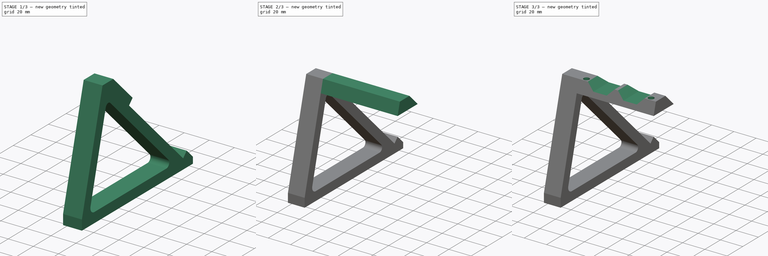
[diagram: build sequence overview — one tinted view per stage of 3, left to right]
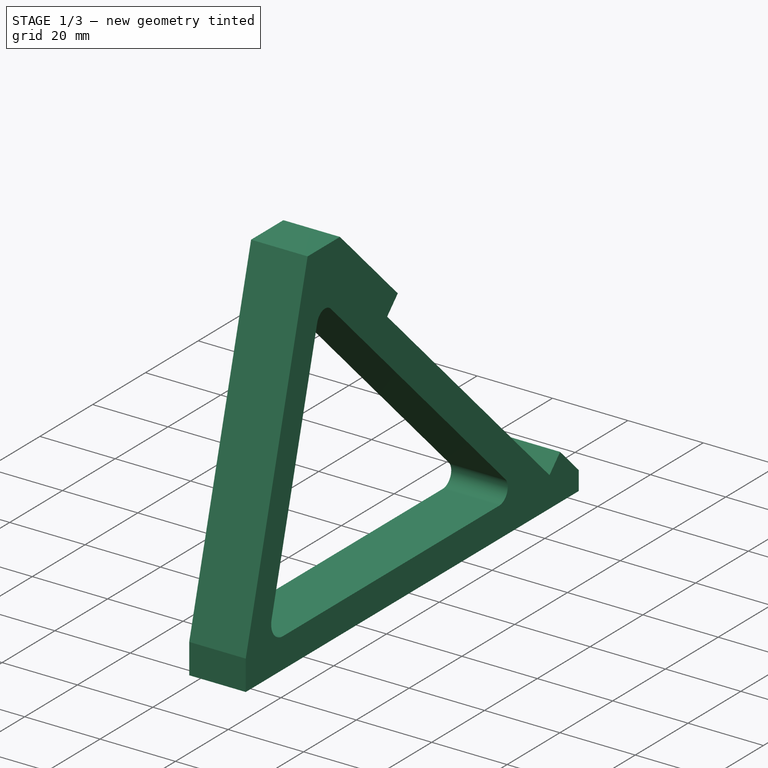
[diagram: stage 1 of 3 — iso view after this stage's code; geometry added in this stage tinted green]
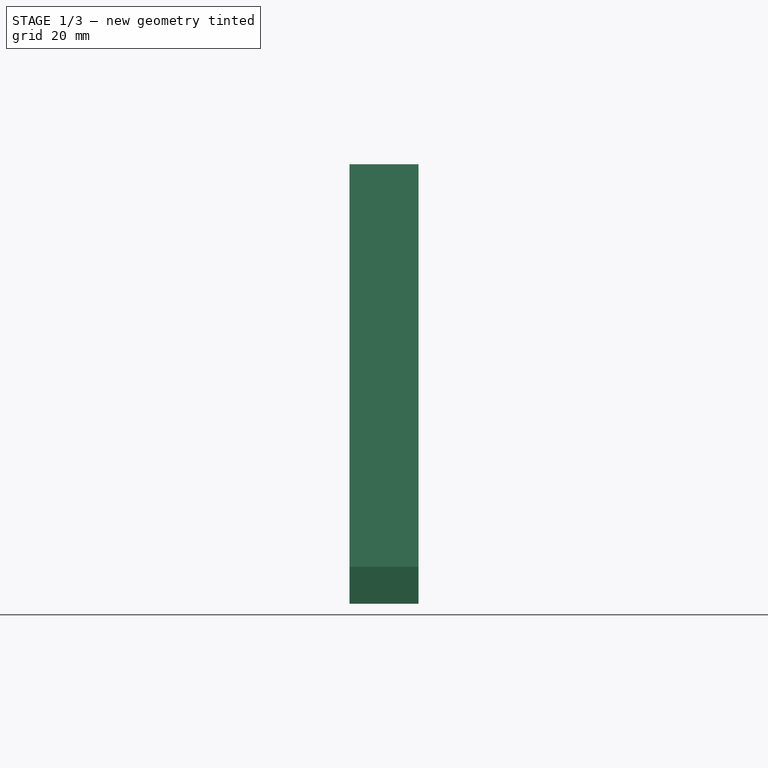
[diagram: stage 1 of 3 — front view after this stage's code; geometry added in this stage tinted green]
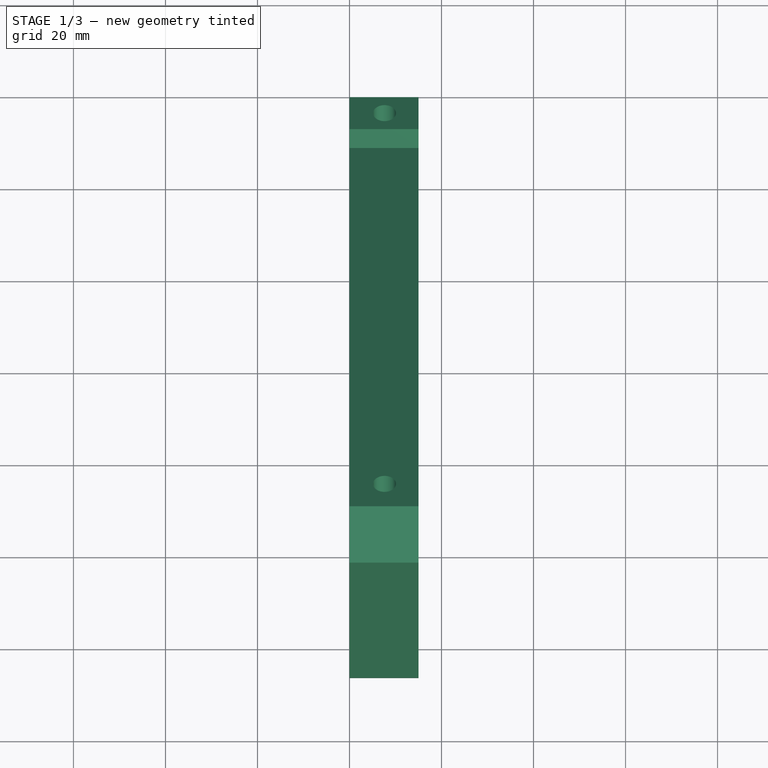
[diagram: stage 1 of 3 — top view after this stage's code; geometry added in this stage tinted green]
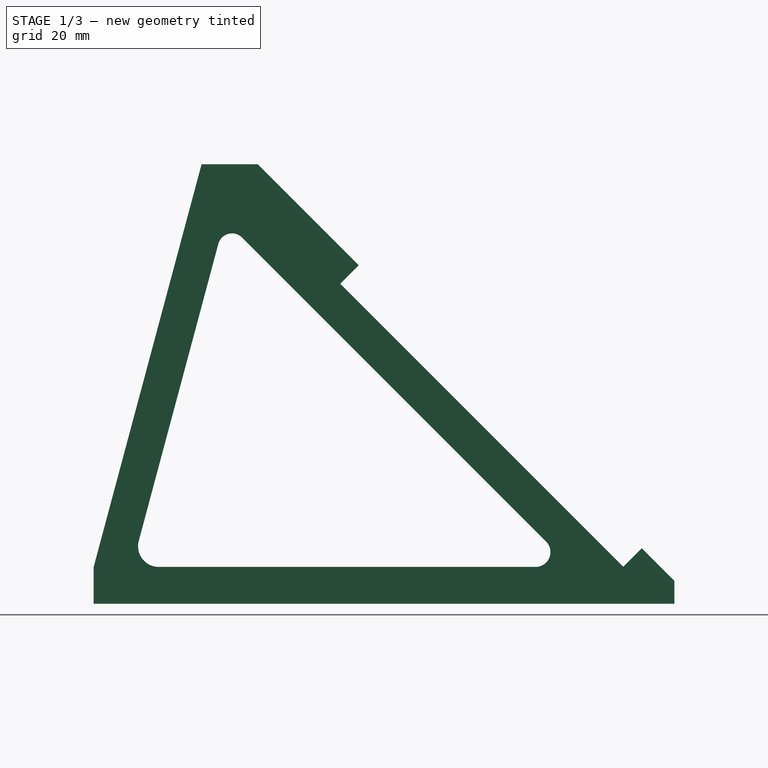
[diagram: stage 1 of 3 — right view after this stage's code; geometry added in this stage tinted green]
FCSTD DOCUMENT  (FreeCAD 0.18R4 (GitTag))
Label: stand_right_v3
License: All rights reserved
LicenseURL: http://en.wikipedia.org/wiki/All_rights_reserved
objects: Sketcher::SketchObject×5, PartDesign::Pocket×4, PartDesign::Pad×2, PartDesign::Body×1
note: 18 computed .brp shape members not serialized (recipe doc carries the construction recipe); baked Part::Feature solids carry a one-line shape summary decoded from their .brp

FEATURE [Sketcher::SketchObject] Sketch
  MapMode = 5
  Placement = pos=(0,0,0) rot=(0.57735,0.57735,0.57735;2.0944rad)
  Support = -> [YZ_Plane]
  sketch-geometry (18):
    g0: LineSegment StartX=-126.204 StartY=0 StartZ=0 EndX=0 EndY=0 EndZ=0
    g1: LineSegment StartX=0 StartY=0 StartZ=0 EndX=0 EndY=5 EndZ=0
    g2: LineSegment StartX=0 StartY=5 StartZ=0 EndX=-7.07107 EndY=12.0711 EndZ=0
    g3: LineSegment StartX=-7.07107 StartY=12.0711 StartZ=0 EndX=-11.1016 EndY=8.04056 EndZ=0
    g4: LineSegment StartX=-11.1016 StartY=8.04056 StartZ=0 EndX=-72.6199 EndY=69.5588 EndZ=0
    g5: LineSegment StartX=-72.6199 StartY=69.5588 StartZ=0 EndX=-68.5894 EndY=73.5894 EndZ=0
    g6: LineSegment StartX=-68.5894 StartY=73.5894 StartZ=0 EndX=-90.5097 EndY=95.5097 EndZ=0
    g7: LineSegment StartX=-93.962 StartY=79.5872 StartZ=0 EndX=-27.8685 EndY=13.4938 EndZ=0
    g8: LineSegment StartX=-30.1441 StartY=8 StartZ=0 EndX=-112.06 EndY=8 EndZ=0
    g9: LineSegment StartX=-126.204 StartY=8 StartZ=0 EndX=-126.204 EndY=0 EndZ=0
    g10: LineSegment StartX=-116.405 StartY=13.6623 StartZ=0 EndX=-99.1101 EndY=78.2078 EndZ=0
    g11: GeomPoint X=-65.4328 Y=51.0581 Z=0
    g12: GeomPoint X=-109.601 Y=39.0554 Z=0
    g13: ArcOfCircle CenterX=-30.1441 CenterY=11.2182 CenterZ=0 NormalX=0 NormalY=0 NormalZ=1 AngleXU=0 Radius=3.21819 StartAngle=4.71239 EndAngle=7.06858
    g14: ArcOfCircle CenterX=-112.06 CenterY=12.4981 CenterZ=0 NormalX=0 NormalY=0 NormalZ=1 AngleXU=0 Radius=4.49811 StartAngle=2.87979 EndAngle=4.71239
    g15: ArcOfCircle CenterX=-96.1378 CenterY=77.4114 CenterZ=0 NormalX=0 NormalY=0 NormalZ=1 AngleXU=0 Radius=3.07713 StartAngle=0.785398 EndAngle=2.87979
    g16: LineSegment StartX=-126.204 StartY=8 StartZ=0 EndX=-102.756 EndY=95.5097 EndZ=0
    g17: LineSegment StartX=-102.756 StartY=95.5097 StartZ=0 EndX=-90.5097 EndY=95.5097 EndZ=0
  constraints (42):
    c: Coincident(g0,g-1)
    c: Horizontal(g0)
    c: Coincident(g0,g1)
    c: Coincident(g1,g2)
    c: Coincident(g2,g3)
    c: Coincident(g3,g4)
    c: Coincident(g4,g5)
    c: Coincident(g5,g6)
    c: Horizontal(g8)
    c: Coincident(g9,g0)
    c: Vertical(g1)
    c: Vertical(g9)
    c: Angle(g7,g8) = 0.785398
    c: Parallel(g7,g4)
    c: Parallel(g7,g6)
    c: Parallel(g7,g2)
    c: Perpendicular(g3,g2)
    c: Perpendicular(g5,g6)
    c: Distance(g1) = 5
    c: Distance(g2) = 10
    c: Distance(g4) = 87
    c: Distance(g5) = 5.7
    c: Distance(g3) = 5.7
    c: Angle(g8,g10) = 1.309
    c: Distance(g9) = 8
    c: PointOnObject(g11,g7)
    c: PointOnObject(g12,g10)
    c: Tangent(g8,g13) = 1.5708
    c: Tangent(g7,g13) = 1.5708
    c: Tangent(g8,g14) = 1.5708
    c: Tangent(g10,g14) = 1.5708
    c: Tangent(g7,g15) = 1.5708
    c: Tangent(g10,g15) = 1.5708
    c: Parallel(g10,g16)
    c: Coincident(g16,g9)
    c: Coincident(g17,g16)
    c: Coincident(g17,g6)
    c: Horizontal(g17)
    c: Distance(g8,g0) = 8
    c: Distance(g7,g4) = 8
    c: Distance(g10,g16) = 8
    c: DistanceX(g6) = -90.5097
FEATURE [PartDesign::Pad] Pad
  Length = 15
  Length2 = 100
  Placement = pos=(0,0,0) rot=(0.57735,0.57735,0.57735;2.0944rad)
  Profile = -> Sketch
  Type = 0
FEATURE [Sketcher::SketchObject] Sketch001
  ExternalGeometry = -> [Pad]
  MapMode = 5
  Placement = pos=(1e-16,2.5,2.5) rot=(-0.357407,-0.357407,-0.862856;1.71777rad)
  Support = -> [Pad]
  sketch-geometry (2):
    g0: Circle CenterX=8.53553 CenterY=7.61996 CenterZ=0 NormalX=0 NormalY=0 NormalZ=1 AngleXU=0 Radius=2.5
    g1: Circle CenterX=124.536 CenterY=7.61925 CenterZ=0 NormalX=0 NormalY=0 NormalZ=1 AngleXU=0 Radius=2.5
  constraints (4):
    c: Radius(g0) = 2.5
    c: Radius(g1) = 2.5
    c: Distance(g1,g0) = 116
    c: Distance(g0,g-5) = 5
FEATURE [PartDesign::Pocket] Pocket
  BaseFeature = -> Pad
  Length = 6
  Length2 = 100
  Placement = pos=(0,0,0) rot=(0.57735,0.57735,0.57735;2.0944rad)
  Profile = -> Sketch001
  Type = 0
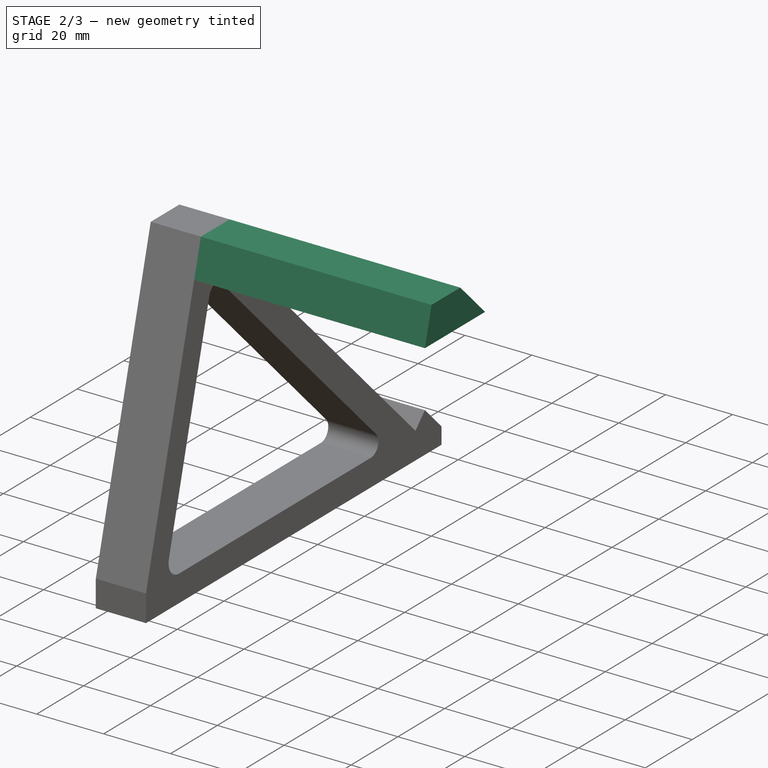
[diagram: stage 2 of 3 — iso view after this stage's code; geometry added in this stage tinted green]
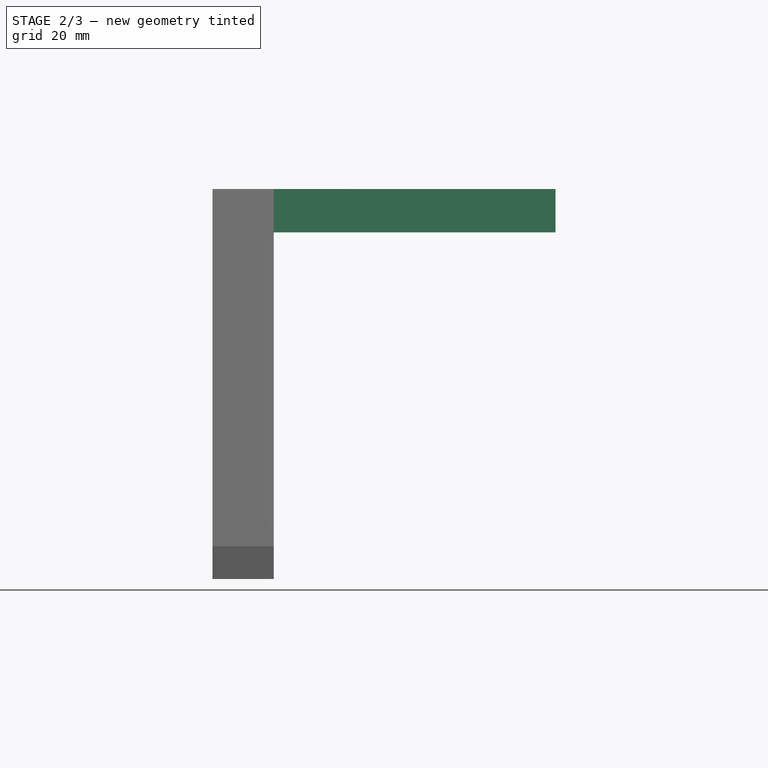
[diagram: stage 2 of 3 — front view after this stage's code; geometry added in this stage tinted green]
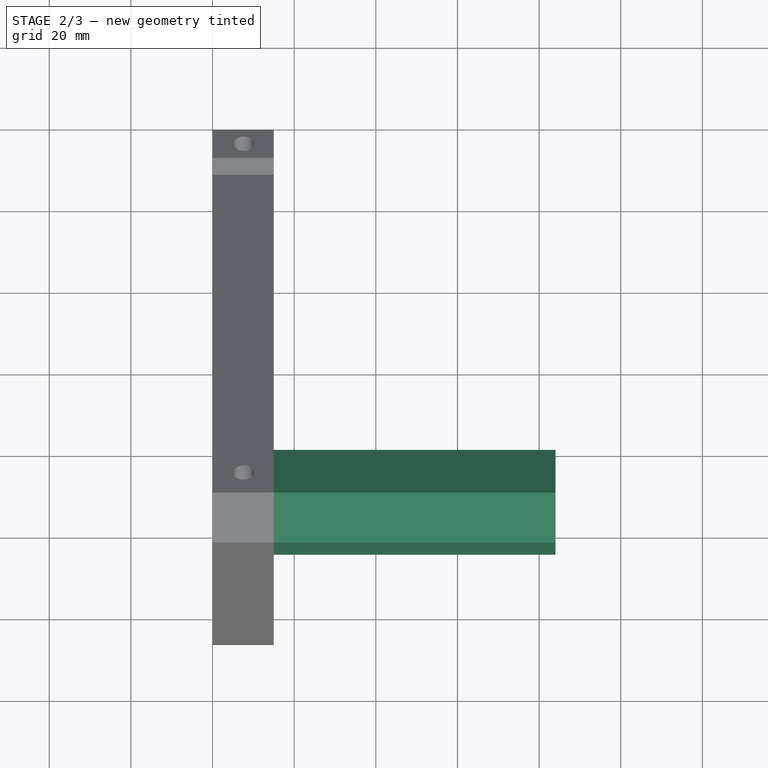
[diagram: stage 2 of 3 — top view after this stage's code; geometry added in this stage tinted green]
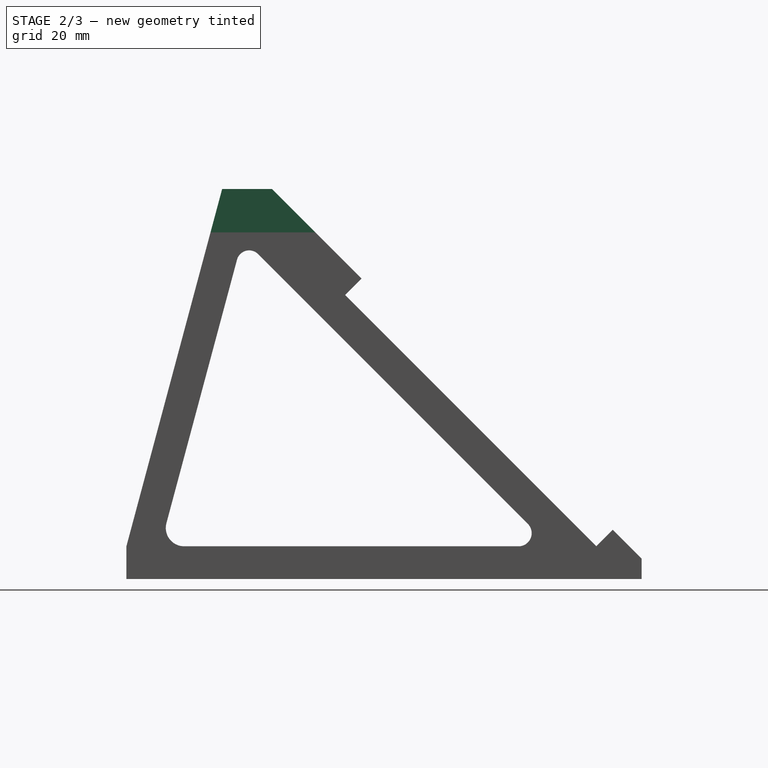
[diagram: stage 2 of 3 — right view after this stage's code; geometry added in this stage tinted green]
FEATURE [Sketcher::SketchObject] Sketch002
  ExternalGeometry = -> [Pocket]
  MapMode = 5
  Placement = pos=(15,-1e-14,6.7e-15) rot=(0.57735,0.57735,0.57735;2.0944rad)
  Support = -> [Pocket]
  sketch-geometry (4):
    g0: LineSegment StartX=-105.598 StartY=84.9031 StartZ=0 EndX=-79.9031 EndY=84.9031 EndZ=0
    g1: LineSegment StartX=-102.756 StartY=95.5097 StartZ=0 EndX=-105.598 EndY=84.9031 EndZ=0
    g2: LineSegment StartX=-102.756 StartY=95.5097 StartZ=0 EndX=-90.5097 EndY=95.5097 EndZ=0
    g3: LineSegment StartX=-79.9031 StartY=84.9031 StartZ=0 EndX=-90.5097 EndY=95.5097 EndZ=0
  constraints (10):
    c: PointOnObject(g0,g-4)
    c: PointOnObject(g0,g-3)
    c: Horizontal(g0)
    c: Coincident(g1,g-4)
    c: Coincident(g1,g0)
    c: Coincident(g2,g1)
    c: Coincident(g2,g-5)
    c: Coincident(g3,g0)
    c: Coincident(g3,g2)
    c: Distance(g3) = 15
FEATURE [PartDesign::Pad] Pad001
  BaseFeature = -> Pocket
  Length = 69
  Length2 = 100
  Placement = pos=(0,0,0) rot=(0.57735,0.57735,0.57735;2.0944rad)
  Profile = -> Sketch002
  Type = 0
FEATURE [Sketcher::SketchObject] Sketch003
  ExternalGeometry = -> [Pad001]
  MapMode = 5
  Placement = pos=(0,0,0) rot=(1,0,0;1.5708rad)
  Support = -> [XZ_Plane]
  sketch-geometry (8):
    g0: LineSegment StartX=23 StartY=95.5097 StartZ=0 EndX=29 EndY=89.5097 EndZ=0
    g1: LineSegment StartX=29 StartY=89.5097 StartZ=0 EndX=41 EndY=89.5097 EndZ=0
    g2: LineSegment StartX=41 StartY=89.5097 StartZ=0 EndX=47 EndY=95.5097 EndZ=0
    g3: LineSegment StartX=23 StartY=95.5097 StartZ=0 EndX=47 EndY=95.5097 EndZ=0
    g4: LineSegment StartX=50 StartY=95.5097 StartZ=0 EndX=74 EndY=95.5097 EndZ=0
    g5: LineSegment StartX=50 StartY=95.5097 StartZ=0 EndX=56 EndY=89.5097 EndZ=0
    g6: LineSegment StartX=56 StartY=89.5097 StartZ=0 EndX=68 EndY=89.5097 EndZ=0
    g7: LineSegment StartX=68 StartY=89.5097 StartZ=0 EndX=74 EndY=95.5097 EndZ=0
  constraints (24):
    c: PointOnObject(g0,g-3)
    c: Coincident(g1,g0)
    c: Horizontal(g1)
    c: Coincident(g2,g1)
    c: PointOnObject(g2,g-3)
    c: Distance(g0,g-3) = 8
    c: Distance(g1) = 12
    c: Angle(g1,g0) = 2.35619
    c: Angle(g2,g1) = 2.35619
    c: DistanceY(g1,g2) = 6
    c: Coincident(g3,g0)
    c: Coincident(g3,g2)
    c: PointOnObject(g4,g-3)
    c: PointOnObject(g4,g-3)
    c: Coincident(g5,g4)
    c: Coincident(g6,g5)
    c: Horizontal(g6)
    c: Coincident(g7,g6)
    c: Coincident(g7,g4)
    c: Distance(g6) = 12
    c: DistanceY(g6,g4) = 6
    c: Angle(g6,g5) = 2.35619
    c: Angle(g7,g6) = 2.35619
    c: Distance(g5,g1) = 15
FEATURE [PartDesign::Pocket] Pocket001
  BaseFeature = -> Pad001
  Length = 5
  Length2 = 100
  Placement = pos=(0,0,0) rot=(0.57735,0.57735,0.57735;2.0944rad)
  Profile = -> Sketch003
  Type = 1
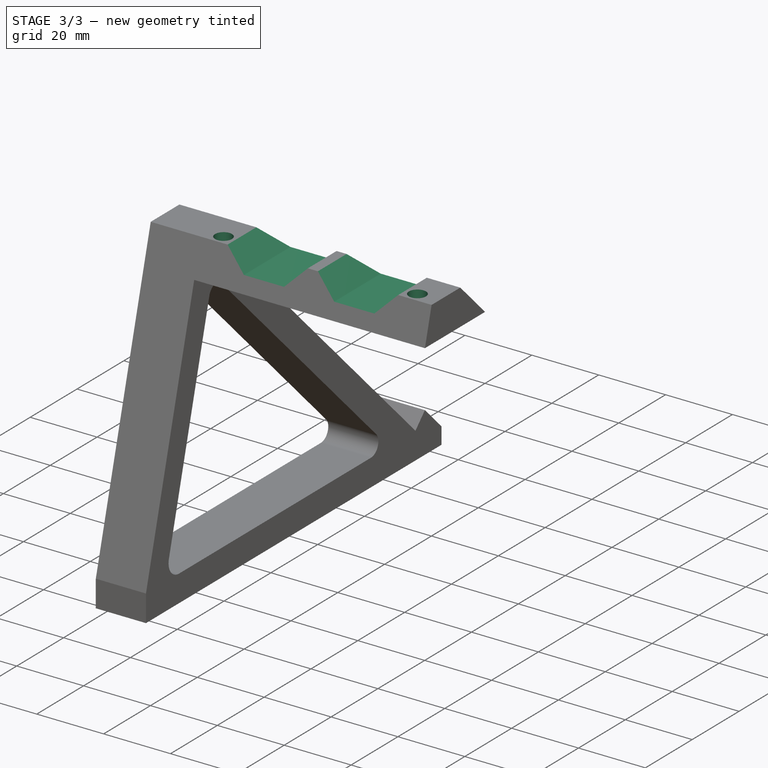
[diagram: stage 3 of 3 — iso view after this stage's code; geometry added in this stage tinted green]
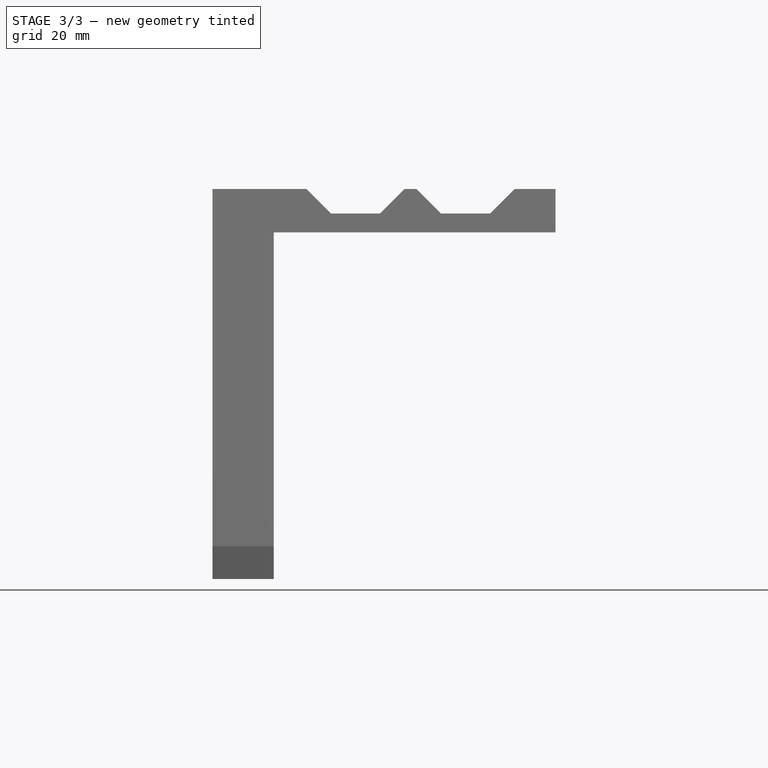
[diagram: stage 3 of 3 — front view after this stage's code; geometry added in this stage tinted green]
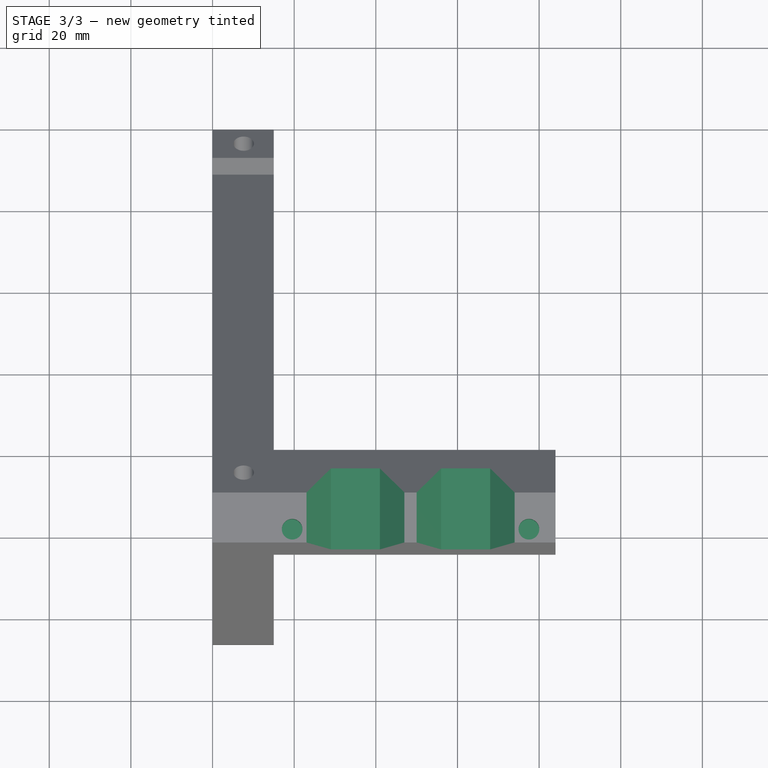
[diagram: stage 3 of 3 — top view after this stage's code; geometry added in this stage tinted green]
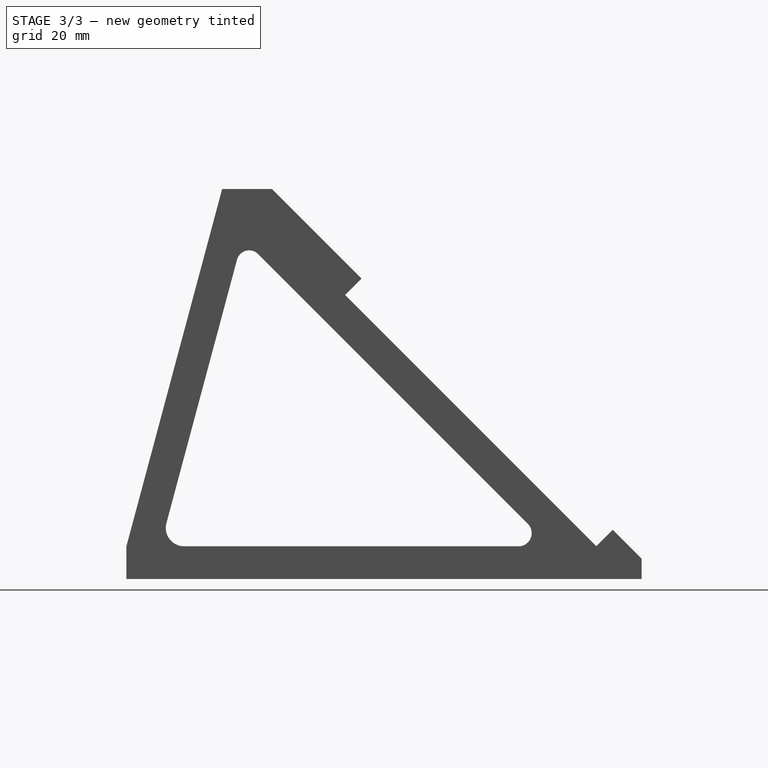
[diagram: stage 3 of 3 — right view after this stage's code; geometry added in this stage tinted green]
FEATURE [PartDesign::Pocket] Pocket002
  BaseFeature = -> Pocket001
  Length = 0
  Length2 = 100
  Placement = pos=(0,0,0) rot=(0.57735,0.57735,0.57735;2.0944rad)
  Profile = -> Sketch003
  Reversed = true
  Type = 1
FEATURE [Sketcher::SketchObject] Sketch004
  ExternalGeometry = -> [Pocket002]
  MapMode = 5
  Placement = pos=(-9.54e-14,5.3e-14,95.5097) rot=(0,0,-1;1.5708rad)
  Support = -> [Pocket002]
  sketch-geometry (2):
    g0: Circle CenterX=99.5097 CenterY=19.5 CenterZ=0 NormalX=0 NormalY=0 NormalZ=1 AngleXU=0 Radius=2.52796
    g1: Circle CenterX=99.5097 CenterY=77.5 CenterZ=0 NormalX=0 NormalY=0 NormalZ=1 AngleXU=0 Radius=2.53857
  constraints (4):
    c: Distance(g0,g-3) = 4.5
    c: Distance(g1,g0) = 58
    c: Distance(g0,g-5) = 9
    c: Vertical(g0,g1)
FEATURE [PartDesign::Pocket] Pocket003
  BaseFeature = -> Pocket002
  Length = 6
  Length2 = 100
  Placement = pos=(0,0,0) rot=(0.57735,0.57735,0.57735;2.0944rad)
  Profile = -> Sketch004
  Type = 0
FEATURE [PartDesign::Body] Body
  Group = -> [Sketch,Pad,Sketch001,Pocket,Sketch002,Pad001,Sketch003,Pocket001,Pocket002,Sketch004,Pocket003]
  Origin = -> Origin
  Tip = -> Pocket003
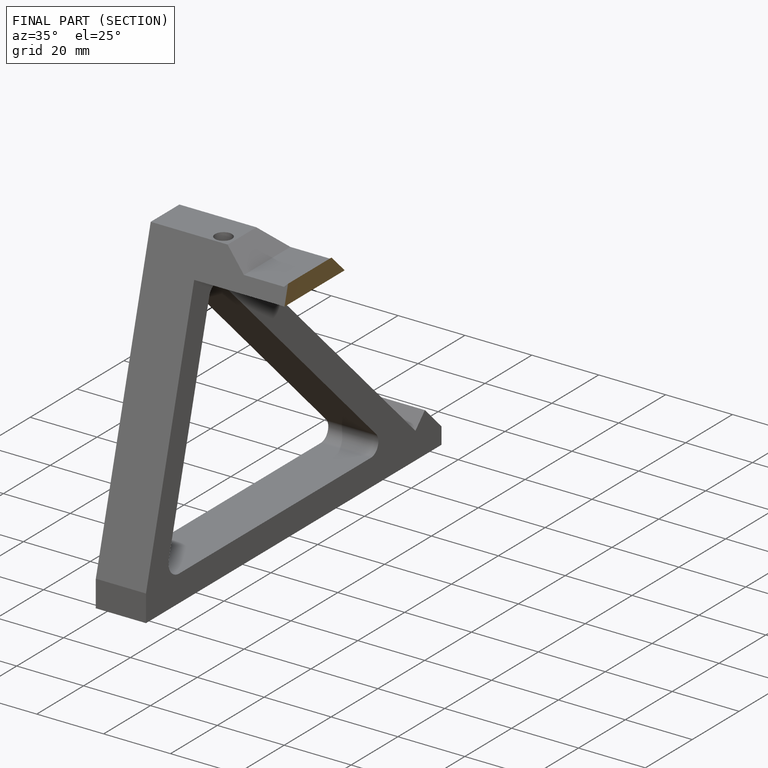
[diagram: finished part — half-section view (interior)]
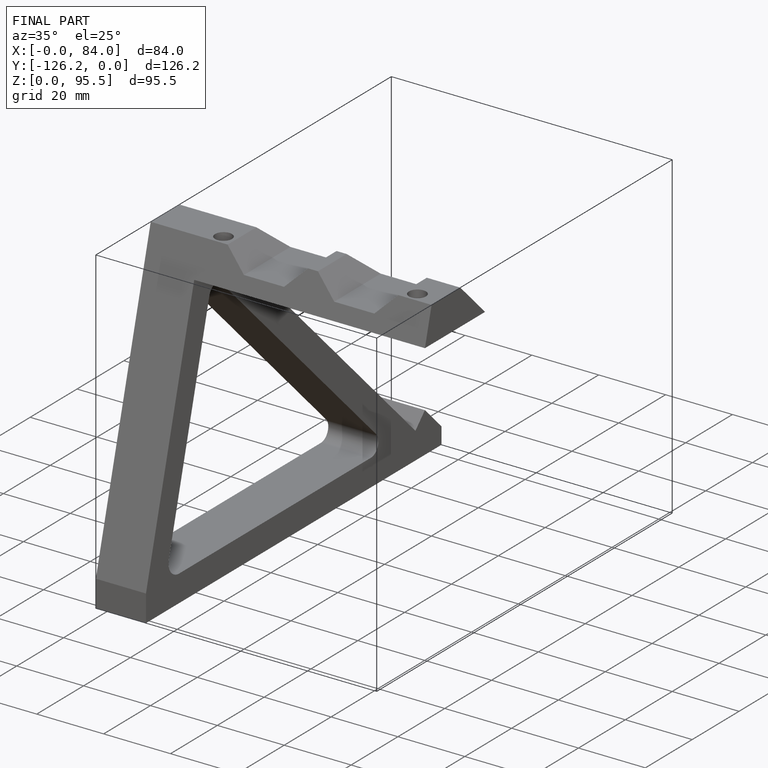
[diagram: finished part — iso view with bounding-box wireframe]
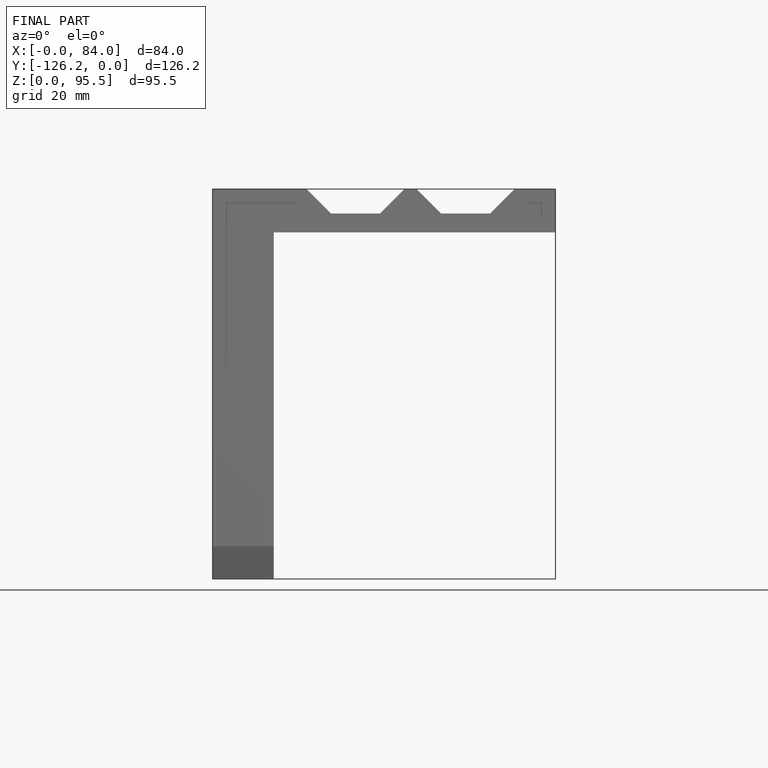
[diagram: finished part — front view with bounding-box wireframe]
